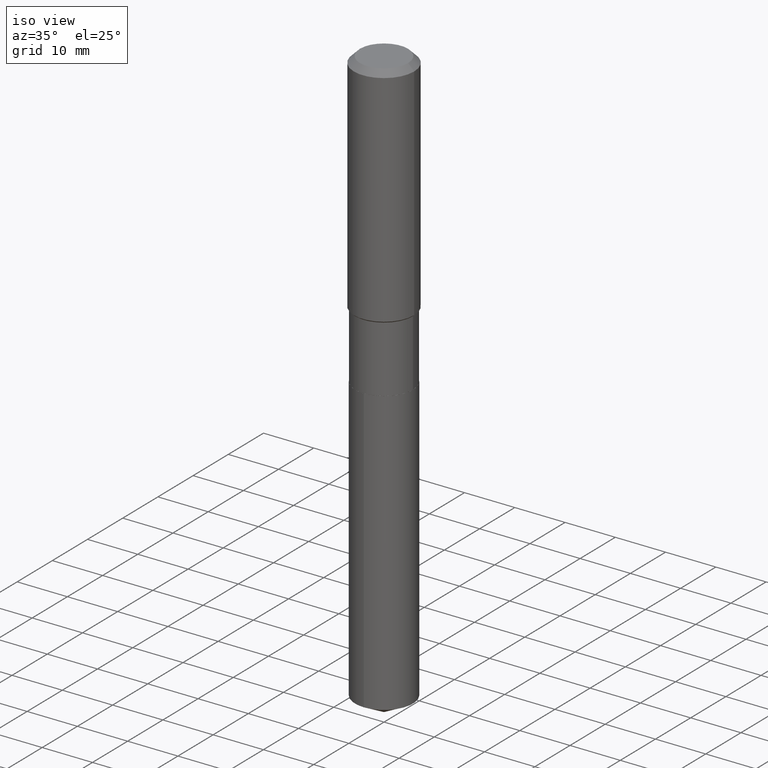
[diagram: clean part render]
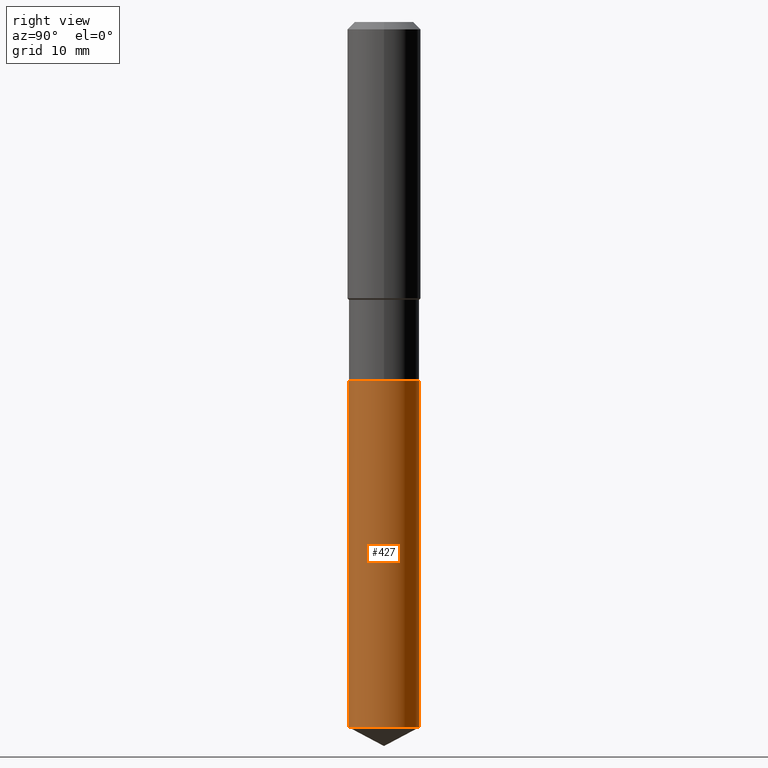
[diagram: tour spotlight — one face highlighted and labeled with its STEP entity id]
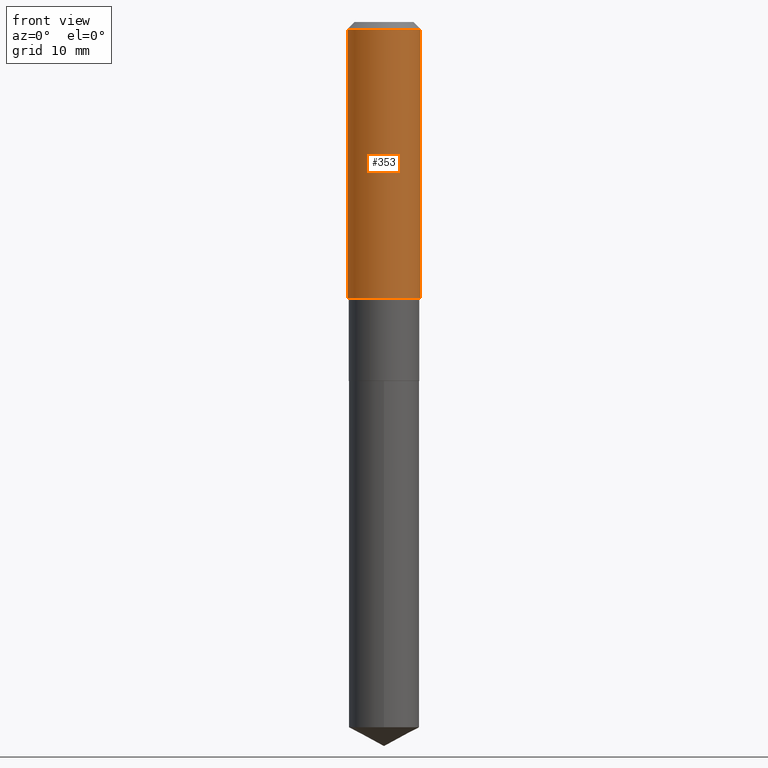
[diagram: tour spotlight — one face highlighted and labeled with its STEP entity id]
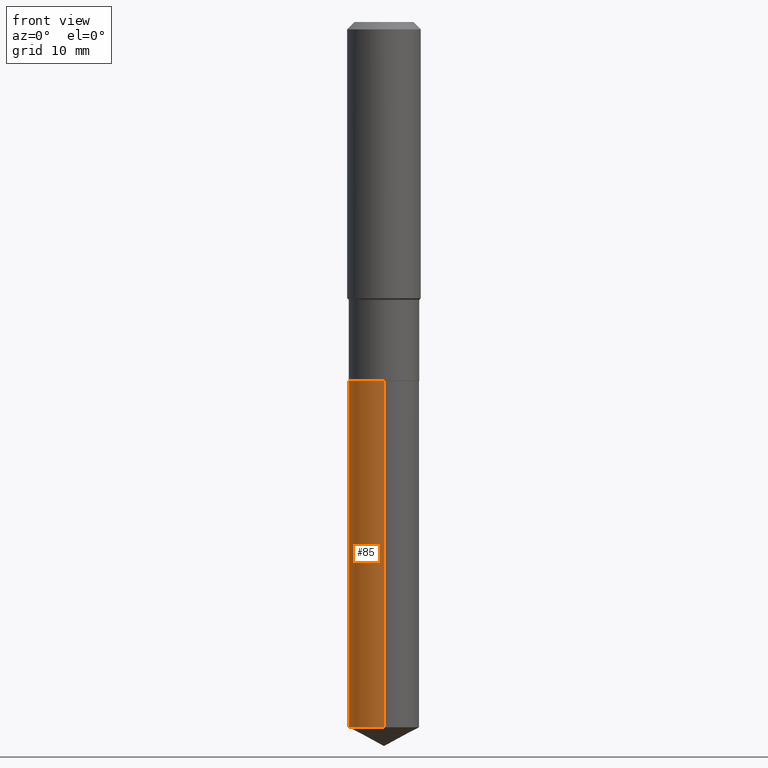
[diagram: tour spotlight — one face highlighted and labeled with its STEP entity id]
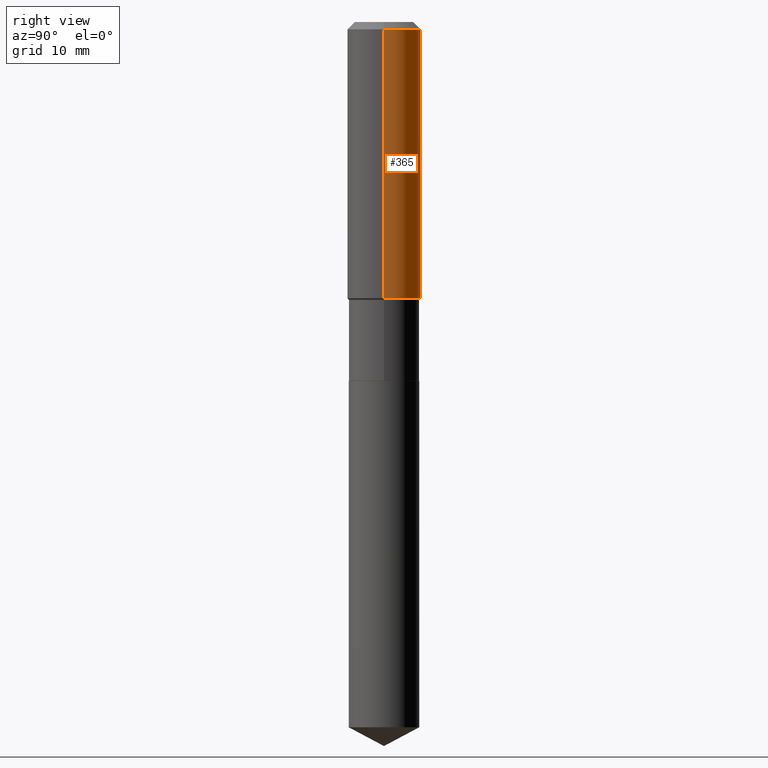
[diagram: tour spotlight — one face highlighted and labeled with its STEP entity id]
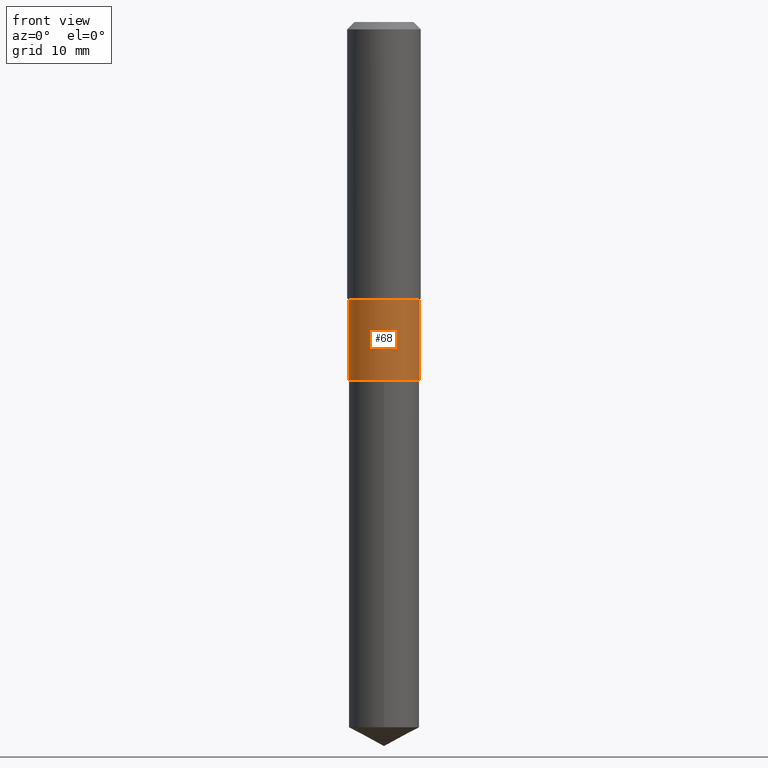
[diagram: tour spotlight — one face highlighted and labeled with its STEP entity id]
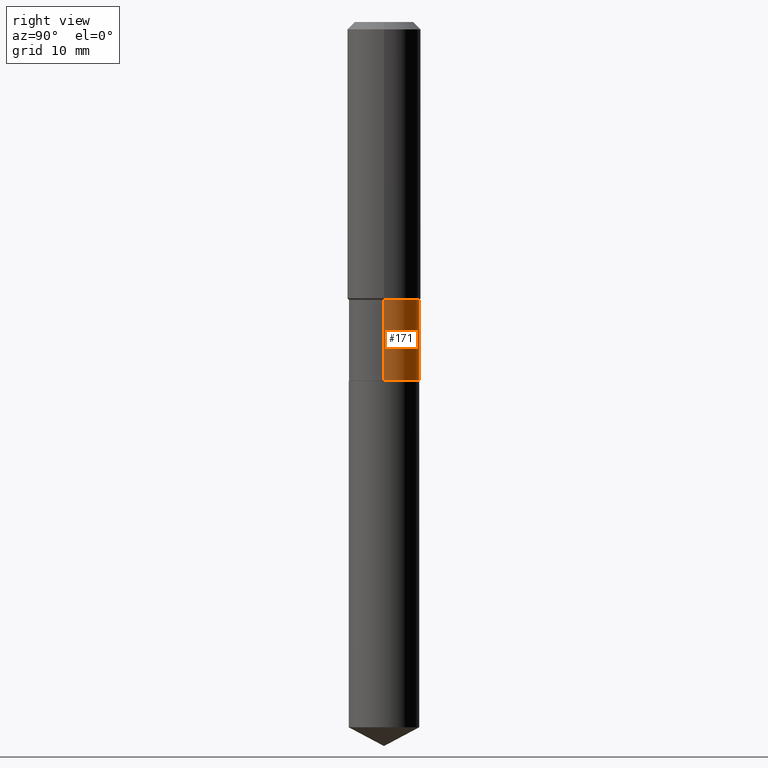
[diagram: tour spotlight — one face highlighted and labeled with its STEP entity id]
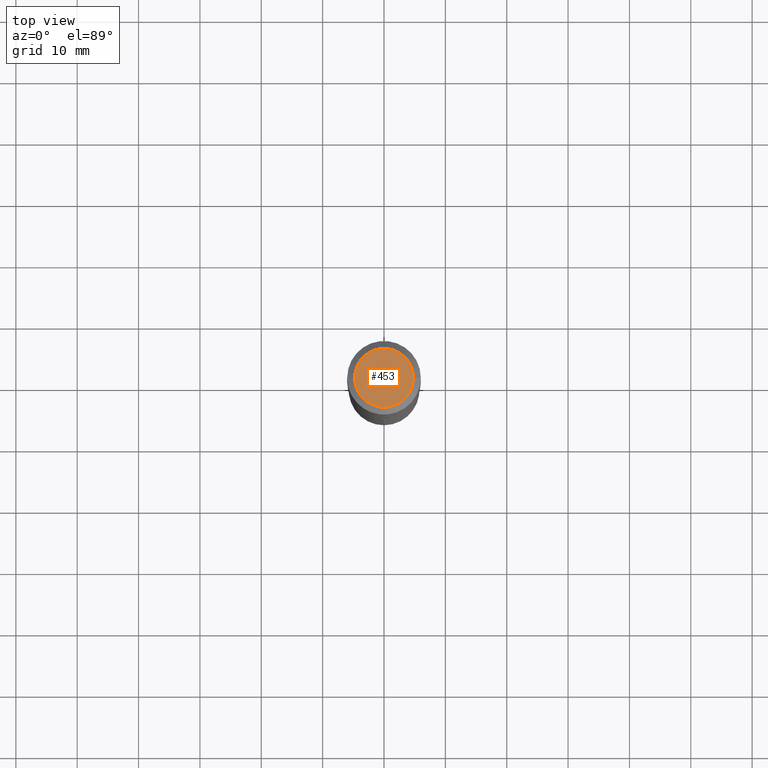
[diagram: tour spotlight — one face highlighted and labeled with its STEP entity id]
A machine part: a face-by-face anatomy tour. The part has 17 B-rep faces; the first image is the clean iso view, then the 7 largest visible faces are spotlighted one at a time (largest first), each with its STEP entity span.

Face 1 — right view, entity #427. In plain terms, the highlighted cylindrical surface (edge-blend (fillet) strip) has radius 5.7506 mm, axis along (-0, 0, 1).
Definition (entity closure, byte-faithful):
#25 = AXIS2_PLACEMENT_3D ( 'NONE', #405, #218, #117 ) ;
#32 = VERTEX_POINT ( 'NONE', #81 ) ;
#39 = DIRECTION ( 'NONE',  ( -2.445464056644001836E-29, 3.491488140456377926E-15, 1.000000000000000000 ) ) ;
#44 = DIRECTION ( 'NONE',  ( -2.445464056644001836E-29, 3.491488140456377531E-15, 1.000000000000000000 ) ) ;
#48 = EDGE_CURVE ( 'NONE', #451, #32, #239, .T. ) ;
#74 = CIRCLE ( 'NONE', #25, 0.2263999999999999624 ) ;
#81 = CARTESIAN_POINT ( 'NONE',  ( 1.608668753760976994E-15, 0.2263999999999841972, -4.525320984671841629 ) ) ;
#84 = VERTEX_POINT ( 'NONE', #320 ) ;
#94 = AXIS2_PLACEMENT_3D ( 'NONE', #127, #390, #258 ) ;
#117 = DIRECTION ( 'NONE',  ( -6.982962677686265922E-15, -1.000000000000000000, 3.619939920933211627E-15 ) ) ;
#127 = CARTESIAN_POINT ( 'NONE',  ( 1.106652075193497074E-28, -1.580008888426451514E-14, -4.525320984671841629 ) ) ;
#141 = LINE ( 'NONE', #296, #230 ) ;
#182 = CYLINDRICAL_SURFACE ( 'NONE', #240, 0.2263999999999999624 ) ;
#213 = EDGE_CURVE ( 'NONE', #451, #84, #141, .T. ) ;
#218 = DIRECTION ( 'NONE',  ( -2.445464056644001836E-29, 3.491488140456377926E-15, 1.000000000000000000 ) ) ;
#230 = VECTOR ( 'NONE', #438, 39.37007874015748143 ) ;
#235 = CARTESIAN_POINT ( 'NONE',  ( -1.580942750228060187E-15, -0.2264000000000157831, -4.525320984671840741 ) ) ;
#237 = CARTESIAN_POINT ( 'NONE',  ( 1.608668753760977191E-15, 0.2263999999999919133, -2.303200000000000358 ) ) ;
#239 = CIRCLE ( 'NONE', #94, 0.2263999999999999624 ) ;
#240 = AXIS2_PLACEMENT_3D ( 'NONE', #382, #39, #420 ) ;
#247 = ORIENTED_EDGE ( 'NONE', *, *, #213, .F. ) ;
#258 = DIRECTION ( 'NONE',  ( -6.982962677686265922E-15, -1.000000000000000000, 2.413293280622141084E-15 ) ) ;
#295 = EDGE_LOOP ( 'NONE', ( #357, #443, #355, #247 ) ) ;
#296 = CARTESIAN_POINT ( 'NONE',  ( -1.580942750228114224E-15, -0.2264000000000080115, -2.303199999999998582 ) ) ;
#310 = FACE_OUTER_BOUND ( 'NONE', #295, .T. ) ;
#320 = CARTESIAN_POINT ( 'NONE',  ( -1.580942750228114224E-15, -0.2264000000000080115, -2.303199999999998582 ) ) ;
#326 = VECTOR ( 'NONE', #44, 39.37007874015748143 ) ;
#336 = EDGE_CURVE ( 'NONE', #84, #366, #74, .T. ) ;
#340 = CARTESIAN_POINT ( 'NONE',  ( 1.608668753760922760E-15, 0.2263999999999919410, -2.303200000000000358 ) ) ;
#355 = ORIENTED_EDGE ( 'NONE', *, *, #336, .F. ) ;
#357 = ORIENTED_EDGE ( 'NONE', *, *, #48, .T. ) ;
#366 = VERTEX_POINT ( 'NONE', #237 ) ;
#382 = CARTESIAN_POINT ( 'NONE',  ( 5.632403754405604963E-29, -8.041579819623531161E-15, -2.303199999999999470 ) ) ;
#390 = DIRECTION ( 'NONE',  ( -2.445464056644001836E-29, 3.491488140456377926E-15, 1.000000000000000000 ) ) ;
#405 = CARTESIAN_POINT ( 'NONE',  ( 5.632403754405604963E-29, -8.041579819623531161E-15, -2.303199999999999470 ) ) ;
#416 = EDGE_CURVE ( 'NONE', #32, #366, #450, .T. ) ;
#420 = DIRECTION ( 'NONE',  ( -6.982962677686265922E-15, -1.000000000000000000, 3.619939920933211627E-15 ) ) ;
#427 = ADVANCED_FACE ( 'NONE', ( #310 ), #182, .T. ) ;
#438 = DIRECTION ( 'NONE',  ( -2.445464056644001836E-29, 3.491488140456377531E-15, 1.000000000000000000 ) ) ;
#443 = ORIENTED_EDGE ( 'NONE', *, *, #416, .T. ) ;
#450 = LINE ( 'NONE', #340, #326 ) ;
#451 = VERTEX_POINT ( 'NONE', #235 ) ;

Face 2 — front view, entity #353. In plain terms, the highlighted cylindrical surface (partial cylindrical patch) has radius 5.9995 mm, axis along (-0, 0, 1).
Definition (entity closure, byte-faithful):
#2 = CARTESIAN_POINT ( 'NONE',  ( -0.2362000000000002153, -4.511047027501882961E-15, -1.772699999999999054 ) ) ;
#12 = CIRCLE ( 'NONE', #319, 0.2362000000000002153 ) ;
#29 = CARTESIAN_POINT ( 'NONE',  ( 0.2361999999999999933, -1.814313362916447440E-15, -0.04724000000000028177 ) ) ;
#31 = EDGE_CURVE ( 'NONE', #469, #211, #277, .T. ) ;
#51 = CARTESIAN_POINT ( 'NONE',  ( -0.2362000000000001043, 1.678301941865357380E-15, -1.161852468318209317E-29 ) ) ;
#57 = CARTESIAN_POINT ( 'NONE',  ( -0.2361999999999999933, -1.498841332041738346E-15, -0.04724000000000028177 ) ) ;
#63 = DIRECTION ( 'NONE',  ( -2.445468806185136597E-29, 3.491481338843145583E-15, 1.000000000000000000 ) ) ;
#70 = EDGE_LOOP ( 'NONE', ( #169, #260, #309, #373 ) ) ;
#73 = DIRECTION ( 'NONE',  ( -2.445468806185136597E-29, 3.491481338843145583E-15, 1.000000000000000000 ) ) ;
#86 = CARTESIAN_POINT ( 'NONE',  ( 0.2362000000000001043, -1.649375784469496920E-15, 1.151752954443000508E-29 ) ) ;
#98 = CARTESIAN_POINT ( 'NONE',  ( 1.155239464041865506E-30, -1.649375784469511859E-16, -0.04724000000000028177 ) ) ;
#106 = CARTESIAN_POINT ( 'NONE',  ( 4.335082552724389227E-29, -6.189348969367240933E-15, -1.772699999999999054 ) ) ;
#108 = AXIS2_PLACEMENT_3D ( 'NONE', #411, #73, #274 ) ;
#135 = EDGE_CURVE ( 'NONE', #369, #331, #254, .T. ) ;
#156 = FACE_OUTER_BOUND ( 'NONE', #70, .T. ) ;
#169 = ORIENTED_EDGE ( 'NONE', *, *, #135, .F. ) ;
#176 = CIRCLE ( 'NONE', #286, 0.2361999999999999933 ) ;
#211 = VERTEX_POINT ( 'NONE', #29 ) ;
#216 = DIRECTION ( 'NONE',  ( -2.445468806185136597E-29, 3.491481338843145583E-15, 1.000000000000000000 ) ) ;
#243 = VECTOR ( 'NONE', #287, 39.37007874015748143 ) ;
#254 = LINE ( 'NONE', #51, #243 ) ;
#260 = ORIENTED_EDGE ( 'NONE', *, *, #316, .T. ) ;
#274 = DIRECTION ( 'NONE',  ( 1.000000000000000000, -6.982962677686266711E-15, 4.876176775795935793E-29 ) ) ;
#277 = LINE ( 'NONE', #86, #444 ) ;
#286 = AXIS2_PLACEMENT_3D ( 'NONE', #98, #216, #363 ) ;
#287 = DIRECTION ( 'NONE',  ( -2.445468806185136877E-29, 3.491481338843145188E-15, 1.000000000000000000 ) ) ;
#301 = CARTESIAN_POINT ( 'NONE',  ( 0.2362000000000002153, -7.838724753836739036E-15, -1.772699999999999054 ) ) ;
#309 = ORIENTED_EDGE ( 'NONE', *, *, #31, .T. ) ;
#311 = EDGE_CURVE ( 'NONE', #331, #211, #176, .T. ) ;
#316 = EDGE_CURVE ( 'NONE', #369, #469, #12, .T. ) ;
#317 = DIRECTION ( 'NONE',  ( -2.445468806185136877E-29, 3.491481338843145188E-15, 1.000000000000000000 ) ) ;
#319 = AXIS2_PLACEMENT_3D ( 'NONE', #106, #63, #367 ) ;
#331 = VERTEX_POINT ( 'NONE', #57 ) ;
#353 = ADVANCED_FACE ( 'NONE', ( #156 ), #376, .T. ) ;
#363 = DIRECTION ( 'NONE',  ( 1.000000000000000000, -6.982962677686266711E-15, 0.000000000000000000 ) ) ;
#367 = DIRECTION ( 'NONE',  ( 1.000000000000000000, -6.982962677686266711E-15, 0.000000000000000000 ) ) ;
#369 = VERTEX_POINT ( 'NONE', #2 ) ;
#373 = ORIENTED_EDGE ( 'NONE', *, *, #311, .F. ) ;
#376 = CYLINDRICAL_SURFACE ( 'NONE', #108, 0.2362000000000001043 ) ;
#411 = CARTESIAN_POINT ( 'NONE',  ( 0.000000000000000000, 0.000000000000000000, 0.000000000000000000 ) ) ;
#444 = VECTOR ( 'NONE', #317, 39.37007874015748143 ) ;
#469 = VERTEX_POINT ( 'NONE', #301 ) ;

Face 3 — front view, entity #85. In plain terms, the highlighted cylindrical surface (edge-blend (fillet) strip) has radius 5.7506 mm, axis along (-0, 0, 1).
Definition (entity closure, byte-faithful):
#14 = EDGE_CURVE ( 'NONE', #32, #451, #138, .T. ) ;
#32 = VERTEX_POINT ( 'NONE', #81 ) ;
#44 = DIRECTION ( 'NONE',  ( -2.445464056644001836E-29, 3.491488140456377531E-15, 1.000000000000000000 ) ) ;
#60 = DIRECTION ( 'NONE',  ( -6.982962677686265922E-15, -1.000000000000000000, 3.619939920933211627E-15 ) ) ;
#81 = CARTESIAN_POINT ( 'NONE',  ( 1.608668753760976994E-15, 0.2263999999999841972, -4.525320984671841629 ) ) ;
#84 = VERTEX_POINT ( 'NONE', #320 ) ;
#85 = ADVANCED_FACE ( 'NONE', ( #368 ), #372, .T. ) ;
#109 = EDGE_LOOP ( 'NONE', ( #408, #181, #264, #111 ) ) ;
#111 = ORIENTED_EDGE ( 'NONE', *, *, #204, .F. ) ;
#138 = CIRCLE ( 'NONE', #165, 0.2263999999999999624 ) ;
#141 = LINE ( 'NONE', #296, #230 ) ;
#146 = DIRECTION ( 'NONE',  ( -2.445464056644001836E-29, 3.491488140456377926E-15, 1.000000000000000000 ) ) ;
#165 = AXIS2_PLACEMENT_3D ( 'NONE', #425, #203, #460 ) ;
#167 = CARTESIAN_POINT ( 'NONE',  ( 5.632403754405604963E-29, -8.041579819623531161E-15, -2.303199999999999470 ) ) ;
#181 = ORIENTED_EDGE ( 'NONE', *, *, #14, .T. ) ;
#195 = CIRCLE ( 'NONE', #219, 0.2263999999999999624 ) ;
#203 = DIRECTION ( 'NONE',  ( -2.445464056644001836E-29, 3.491488140456377926E-15, 1.000000000000000000 ) ) ;
#204 = EDGE_CURVE ( 'NONE', #366, #84, #195, .T. ) ;
#213 = EDGE_CURVE ( 'NONE', #451, #84, #141, .T. ) ;
#219 = AXIS2_PLACEMENT_3D ( 'NONE', #167, #472, #60 ) ;
#220 = CARTESIAN_POINT ( 'NONE',  ( 5.632403754405604963E-29, -8.041579819623531161E-15, -2.303199999999999470 ) ) ;
#230 = VECTOR ( 'NONE', #438, 39.37007874015748143 ) ;
#235 = CARTESIAN_POINT ( 'NONE',  ( -1.580942750228060187E-15, -0.2264000000000157831, -4.525320984671840741 ) ) ;
#237 = CARTESIAN_POINT ( 'NONE',  ( 1.608668753760977191E-15, 0.2263999999999919133, -2.303200000000000358 ) ) ;
#264 = ORIENTED_EDGE ( 'NONE', *, *, #213, .T. ) ;
#296 = CARTESIAN_POINT ( 'NONE',  ( -1.580942750228114224E-15, -0.2264000000000080115, -2.303199999999998582 ) ) ;
#320 = CARTESIAN_POINT ( 'NONE',  ( -1.580942750228114224E-15, -0.2264000000000080115, -2.303199999999998582 ) ) ;
#326 = VECTOR ( 'NONE', #44, 39.37007874015748143 ) ;
#340 = CARTESIAN_POINT ( 'NONE',  ( 1.608668753760922760E-15, 0.2263999999999919410, -2.303200000000000358 ) ) ;
#366 = VERTEX_POINT ( 'NONE', #237 ) ;
#368 = FACE_OUTER_BOUND ( 'NONE', #109, .T. ) ;
#372 = CYLINDRICAL_SURFACE ( 'NONE', #474, 0.2263999999999999624 ) ;
#408 = ORIENTED_EDGE ( 'NONE', *, *, #416, .F. ) ;
#416 = EDGE_CURVE ( 'NONE', #32, #366, #450, .T. ) ;
#425 = CARTESIAN_POINT ( 'NONE',  ( 1.106652075193497074E-28, -1.580008888426451514E-14, -4.525320984671841629 ) ) ;
#438 = DIRECTION ( 'NONE',  ( -2.445464056644001836E-29, 3.491488140456377531E-15, 1.000000000000000000 ) ) ;
#450 = LINE ( 'NONE', #340, #326 ) ;
#451 = VERTEX_POINT ( 'NONE', #235 ) ;
#460 = DIRECTION ( 'NONE',  ( -6.982962677686265922E-15, -1.000000000000000000, 2.413293280622141084E-15 ) ) ;
#468 = DIRECTION ( 'NONE',  ( -6.982962677686265922E-15, -1.000000000000000000, 3.619939920933211627E-15 ) ) ;
#472 = DIRECTION ( 'NONE',  ( -2.445464056644001836E-29, 3.491488140456377926E-15, 1.000000000000000000 ) ) ;
#474 = AXIS2_PLACEMENT_3D ( 'NONE', #220, #146, #468 ) ;

Face 4 — right view, entity #365. In plain terms, the highlighted cylindrical surface (partial cylindrical patch) has radius 5.9995 mm, axis along (-0, 0, 1).
Definition (entity closure, byte-faithful):
#2 = CARTESIAN_POINT ( 'NONE',  ( -0.2362000000000002153, -4.511047027501882961E-15, -1.772699999999999054 ) ) ;
#3 = CARTESIAN_POINT ( 'NONE',  ( 1.155239464041865506E-30, -1.649375784469511859E-16, -0.04724000000000028177 ) ) ;
#6 = DIRECTION ( 'NONE',  ( 1.000000000000000000, -6.982962677686266711E-15, 4.876176775795935793E-29 ) ) ;
#29 = CARTESIAN_POINT ( 'NONE',  ( 0.2361999999999999933, -1.814313362916447440E-15, -0.04724000000000028177 ) ) ;
#31 = EDGE_CURVE ( 'NONE', #469, #211, #277, .T. ) ;
#51 = CARTESIAN_POINT ( 'NONE',  ( -0.2362000000000001043, 1.678301941865357380E-15, -1.161852468318209317E-29 ) ) ;
#57 = CARTESIAN_POINT ( 'NONE',  ( -0.2361999999999999933, -1.498841332041738346E-15, -0.04724000000000028177 ) ) ;
#59 = ORIENTED_EDGE ( 'NONE', *, *, #135, .T. ) ;
#80 = AXIS2_PLACEMENT_3D ( 'NONE', #270, #153, #6 ) ;
#86 = CARTESIAN_POINT ( 'NONE',  ( 0.2362000000000001043, -1.649375784469496920E-15, 1.151752954443000508E-29 ) ) ;
#113 = DIRECTION ( 'NONE',  ( 1.000000000000000000, -6.982962677686266711E-15, 0.000000000000000000 ) ) ;
#135 = EDGE_CURVE ( 'NONE', #369, #331, #254, .T. ) ;
#153 = DIRECTION ( 'NONE',  ( -2.445468806185136597E-29, 3.491481338843145583E-15, 1.000000000000000000 ) ) ;
#164 = ORIENTED_EDGE ( 'NONE', *, *, #484, .F. ) ;
#166 = ORIENTED_EDGE ( 'NONE', *, *, #31, .F. ) ;
#170 = CARTESIAN_POINT ( 'NONE',  ( 4.335082552724389227E-29, -6.189348969367240933E-15, -1.772699999999999054 ) ) ;
#175 = AXIS2_PLACEMENT_3D ( 'NONE', #170, #473, #439 ) ;
#192 = EDGE_CURVE ( 'NONE', #469, #369, #393, .T. ) ;
#211 = VERTEX_POINT ( 'NONE', #29 ) ;
#243 = VECTOR ( 'NONE', #287, 39.37007874015748143 ) ;
#245 = AXIS2_PLACEMENT_3D ( 'NONE', #3, #490, #113 ) ;
#254 = LINE ( 'NONE', #51, #243 ) ;
#270 = CARTESIAN_POINT ( 'NONE',  ( 0.000000000000000000, 0.000000000000000000, 0.000000000000000000 ) ) ;
#277 = LINE ( 'NONE', #86, #444 ) ;
#280 = EDGE_LOOP ( 'NONE', ( #375, #59, #164, #166 ) ) ;
#287 = DIRECTION ( 'NONE',  ( -2.445468806185136877E-29, 3.491481338843145188E-15, 1.000000000000000000 ) ) ;
#301 = CARTESIAN_POINT ( 'NONE',  ( 0.2362000000000002153, -7.838724753836739036E-15, -1.772699999999999054 ) ) ;
#317 = DIRECTION ( 'NONE',  ( -2.445468806185136877E-29, 3.491481338843145188E-15, 1.000000000000000000 ) ) ;
#331 = VERTEX_POINT ( 'NONE', #57 ) ;
#365 = ADVANCED_FACE ( 'NONE', ( #455 ), #385, .T. ) ;
#369 = VERTEX_POINT ( 'NONE', #2 ) ;
#375 = ORIENTED_EDGE ( 'NONE', *, *, #192, .T. ) ;
#385 = CYLINDRICAL_SURFACE ( 'NONE', #80, 0.2362000000000001043 ) ;
#393 = CIRCLE ( 'NONE', #175, 0.2362000000000002153 ) ;
#439 = DIRECTION ( 'NONE',  ( 1.000000000000000000, -6.982962677686266711E-15, 0.000000000000000000 ) ) ;
#444 = VECTOR ( 'NONE', #317, 39.37007874015748143 ) ;
#454 = CIRCLE ( 'NONE', #245, 0.2361999999999999933 ) ;
#455 = FACE_OUTER_BOUND ( 'NONE', #280, .T. ) ;
#469 = VERTEX_POINT ( 'NONE', #301 ) ;
#473 = DIRECTION ( 'NONE',  ( -2.445468806185136597E-29, 3.491481338843145583E-15, 1.000000000000000000 ) ) ;
#484 = EDGE_CURVE ( 'NONE', #211, #331, #454, .T. ) ;
#490 = DIRECTION ( 'NONE',  ( -2.445468806185136597E-29, 3.491481338843145583E-15, 1.000000000000000000 ) ) ;

Face 5 — front view, entity #68. In plain terms, the highlighted cylindrical surface (edge-blend (fillet) strip) has radius 5.7506 mm, axis along (-0, 0, 1).
Definition (entity closure, byte-faithful):
#16 = CARTESIAN_POINT ( 'NONE',  ( 0.2263999999999999624, -9.620776829182280876E-15, -2.302699999999999303 ) ) ;
#20 = CARTESIAN_POINT ( 'NONE',  ( 0.000000000000000000, 0.000000000000000000, 0.000000000000000000 ) ) ;
#34 = ORIENTED_EDGE ( 'NONE', *, *, #131, .T. ) ;
#35 = AXIS2_PLACEMENT_3D ( 'NONE', #107, #250, #137 ) ;
#68 = ADVANCED_FACE ( 'NONE', ( #90 ), #481, .T. ) ;
#79 = AXIS2_PLACEMENT_3D ( 'NONE', #294, #436, #284 ) ;
#90 = FACE_OUTER_BOUND ( 'NONE', #321, .T. ) ;
#99 = EDGE_CURVE ( 'NONE', #485, #162, #124, .T. ) ;
#103 = EDGE_CURVE ( 'NONE', #143, #162, #442, .T. ) ;
#107 = CARTESIAN_POINT ( 'NONE',  ( 5.631181020002513283E-29, -8.039834078954108869E-15, -2.302699999999999303 ) ) ;
#119 = EDGE_CURVE ( 'NONE', #288, #485, #132, .T. ) ;
#124 = CIRCLE ( 'NONE', #79, 0.2263999999999999069 ) ;
#131 = EDGE_CURVE ( 'NONE', #288, #143, #268, .T. ) ;
#132 = LINE ( 'NONE', #478, #252 ) ;
#137 = DIRECTION ( 'NONE',  ( 1.000000000000000000, -6.982962677686269077E-15, 0.000000000000000000 ) ) ;
#143 = VERTEX_POINT ( 'NONE', #16 ) ;
#162 = VERTEX_POINT ( 'NONE', #398 ) ;
#168 = DIRECTION ( 'NONE',  ( -2.445468806185136597E-29, 3.491481338843145583E-15, 1.000000000000000000 ) ) ;
#174 = DIRECTION ( 'NONE',  ( -2.445468806185136877E-29, 3.491481338843145188E-15, 1.000000000000000000 ) ) ;
#201 = VECTOR ( 'NONE', #431, 39.37007874015748143 ) ;
#250 = DIRECTION ( 'NONE',  ( -2.445468806185136597E-29, 3.491481338843145583E-15, 1.000000000000000000 ) ) ;
#252 = VECTOR ( 'NONE', #174, 39.37007874015748143 ) ;
#268 = CIRCLE ( 'NONE', #35, 0.2263999999999999624 ) ;
#279 = ORIENTED_EDGE ( 'NONE', *, *, #99, .F. ) ;
#284 = DIRECTION ( 'NONE',  ( 1.000000000000000000, -6.982962677686265922E-15, 0.000000000000000000 ) ) ;
#288 = VERTEX_POINT ( 'NONE', #293 ) ;
#290 = CARTESIAN_POINT ( 'NONE',  ( 0.2263999999999999346, -1.580942750228170233E-15, 1.103966422040199590E-29 ) ) ;
#293 = CARTESIAN_POINT ( 'NONE',  ( -0.2263999999999999624, -5.523031028960140857E-15, -2.302699999999999303 ) ) ;
#294 = CARTESIAN_POINT ( 'NONE',  ( 4.359048147025004325E-29, -6.223565486487904770E-15, -1.782499999999999307 ) ) ;
#297 = AXIS2_PLACEMENT_3D ( 'NONE', #20, #168, #323 ) ;
#321 = EDGE_LOOP ( 'NONE', ( #482, #34, #489, #279 ) ) ;
#323 = DIRECTION ( 'NONE',  ( 1.000000000000000000, -6.982962677686265922E-15, 4.876176775795935793E-29 ) ) ;
#398 = CARTESIAN_POINT ( 'NONE',  ( 0.2263999999999999069, -7.804508236716074411E-15, -1.782499999999999307 ) ) ;
#410 = CARTESIAN_POINT ( 'NONE',  ( -0.2263999999999999069, -5.523031028960140857E-15, -1.782499999999999307 ) ) ;
#431 = DIRECTION ( 'NONE',  ( -2.445468806185136877E-29, 3.491481338843145188E-15, 1.000000000000000000 ) ) ;
#436 = DIRECTION ( 'NONE',  ( -2.445468806185136597E-29, 3.491481338843145583E-15, 1.000000000000000000 ) ) ;
#442 = LINE ( 'NONE', #290, #201 ) ;
#478 = CARTESIAN_POINT ( 'NONE',  ( -0.2263999999999999346, 1.608668753760866356E-15, -1.113646904433710280E-29 ) ) ;
#481 = CYLINDRICAL_SURFACE ( 'NONE', #297, 0.2263999999999999346 ) ;
#482 = ORIENTED_EDGE ( 'NONE', *, *, #119, .F. ) ;
#485 = VERTEX_POINT ( 'NONE', #410 ) ;
#489 = ORIENTED_EDGE ( 'NONE', *, *, #103, .T. ) ;

Face 6 — right view, entity #171. In plain terms, the highlighted cylindrical surface (edge-blend (fillet) strip) has radius 5.7506 mm, axis along (-0, 0, 1).
Definition (entity closure, byte-faithful):
#16 = CARTESIAN_POINT ( 'NONE',  ( 0.2263999999999999624, -9.620776829182280876E-15, -2.302699999999999303 ) ) ;
#19 = EDGE_CURVE ( 'NONE', #143, #288, #149, .T. ) ;
#21 = ORIENTED_EDGE ( 'NONE', *, *, #19, .T. ) ;
#50 = DIRECTION ( 'NONE',  ( 1.000000000000000000, -6.982962677686269077E-15, 0.000000000000000000 ) ) ;
#52 = FACE_OUTER_BOUND ( 'NONE', #426, .T. ) ;
#58 = CARTESIAN_POINT ( 'NONE',  ( 0.000000000000000000, 0.000000000000000000, 0.000000000000000000 ) ) ;
#93 = CARTESIAN_POINT ( 'NONE',  ( 4.359048147025004325E-29, -6.223565486487904770E-15, -1.782499999999999307 ) ) ;
#96 = ORIENTED_EDGE ( 'NONE', *, *, #103, .F. ) ;
#100 = DIRECTION ( 'NONE',  ( 1.000000000000000000, -6.982962677686265922E-15, 0.000000000000000000 ) ) ;
#103 = EDGE_CURVE ( 'NONE', #143, #162, #442, .T. ) ;
#110 = EDGE_CURVE ( 'NONE', #162, #485, #486, .T. ) ;
#119 = EDGE_CURVE ( 'NONE', #288, #485, #132, .T. ) ;
#132 = LINE ( 'NONE', #478, #252 ) ;
#143 = VERTEX_POINT ( 'NONE', #16 ) ;
#149 = CIRCLE ( 'NONE', #379, 0.2263999999999999624 ) ;
#162 = VERTEX_POINT ( 'NONE', #398 ) ;
#171 = ADVANCED_FACE ( 'NONE', ( #52 ), #402, .T. ) ;
#172 = ORIENTED_EDGE ( 'NONE', *, *, #110, .F. ) ;
#174 = DIRECTION ( 'NONE',  ( -2.445468806185136877E-29, 3.491481338843145188E-15, 1.000000000000000000 ) ) ;
#177 = ORIENTED_EDGE ( 'NONE', *, *, #119, .T. ) ;
#201 = VECTOR ( 'NONE', #431, 39.37007874015748143 ) ;
#214 = DIRECTION ( 'NONE',  ( 1.000000000000000000, -6.982962677686265922E-15, 4.876176775795935793E-29 ) ) ;
#252 = VECTOR ( 'NONE', #174, 39.37007874015748143 ) ;
#253 = DIRECTION ( 'NONE',  ( -2.445468806185136597E-29, 3.491481338843145583E-15, 1.000000000000000000 ) ) ;
#288 = VERTEX_POINT ( 'NONE', #293 ) ;
#290 = CARTESIAN_POINT ( 'NONE',  ( 0.2263999999999999346, -1.580942750228170233E-15, 1.103966422040199590E-29 ) ) ;
#293 = CARTESIAN_POINT ( 'NONE',  ( -0.2263999999999999624, -5.523031028960140857E-15, -2.302699999999999303 ) ) ;
#313 = CARTESIAN_POINT ( 'NONE',  ( 5.631181020002513283E-29, -8.039834078954108869E-15, -2.302699999999999303 ) ) ;
#327 = DIRECTION ( 'NONE',  ( -2.445468806185136597E-29, 3.491481338843145583E-15, 1.000000000000000000 ) ) ;
#379 = AXIS2_PLACEMENT_3D ( 'NONE', #313, #463, #50 ) ;
#398 = CARTESIAN_POINT ( 'NONE',  ( 0.2263999999999999069, -7.804508236716074411E-15, -1.782499999999999307 ) ) ;
#402 = CYLINDRICAL_SURFACE ( 'NONE', #428, 0.2263999999999999346 ) ;
#410 = CARTESIAN_POINT ( 'NONE',  ( -0.2263999999999999069, -5.523031028960140857E-15, -1.782499999999999307 ) ) ;
#426 = EDGE_LOOP ( 'NONE', ( #21, #177, #172, #96 ) ) ;
#428 = AXIS2_PLACEMENT_3D ( 'NONE', #58, #327, #214 ) ;
#431 = DIRECTION ( 'NONE',  ( -2.445468806185136877E-29, 3.491481338843145188E-15, 1.000000000000000000 ) ) ;
#442 = LINE ( 'NONE', #290, #201 ) ;
#461 = AXIS2_PLACEMENT_3D ( 'NONE', #93, #253, #100 ) ;
#463 = DIRECTION ( 'NONE',  ( -2.445468806185136597E-29, 3.491481338843145583E-15, 1.000000000000000000 ) ) ;
#478 = CARTESIAN_POINT ( 'NONE',  ( -0.2263999999999999346, 1.608668753760866356E-15, -1.113646904433710280E-29 ) ) ;
#485 = VERTEX_POINT ( 'NONE', #410 ) ;
#486 = CIRCLE ( 'NONE', #461, 0.2263999999999999069 ) ;

Face 7 — top view, entity #453. In plain terms, the highlighted planar face has unit normal (0, -0, -1).
Definition (entity closure, byte-faithful):
#15 = VERTEX_POINT ( 'NONE', #278 ) ;
#18 = AXIS2_PLACEMENT_3D ( 'NONE', #458, #154, #343 ) ;
#102 = DIRECTION ( 'NONE',  ( 1.000000000000000000, -6.982962677686266711E-15, 4.876185090822587894E-29 ) ) ;
#122 = FACE_OUTER_BOUND ( 'NONE', #128, .T. ) ;
#128 = EDGE_LOOP ( 'NONE', ( #457, #179 ) ) ;
#152 = DIRECTION ( 'NONE',  ( 2.438088387897960049E-29, -3.491481338843145188E-15, -1.000000000000000000 ) ) ;
#154 = DIRECTION ( 'NONE',  ( -2.445468806185136597E-29, 3.491481338843145583E-15, 1.000000000000000000 ) ) ;
#160 = AXIS2_PLACEMENT_3D ( 'NONE', #487, #152, #383 ) ;
#179 = ORIENTED_EDGE ( 'NONE', *, *, #449, .T. ) ;
#251 = EDGE_CURVE ( 'NONE', #333, #15, #298, .T. ) ;
#256 = CARTESIAN_POINT ( 'NONE',  ( -9.427742298522546243E-47, 1.346031739168365344E-32, 3.855188123715862256E-18 ) ) ;
#261 = DIRECTION ( 'NONE',  ( -2.445468806185136597E-29, 3.491481338843145583E-15, 1.000000000000000000 ) ) ;
#278 = CARTESIAN_POINT ( 'NONE',  ( 0.1889600000000000168, -1.540873453589747738E-15, 3.855188123725863225E-18 ) ) ;
#298 = CIRCLE ( 'NONE', #346, 0.1889600000000000168 ) ;
#325 = CARTESIAN_POINT ( 'NONE',  ( -0.1889600000000000168, 1.401969416799070942E-15, 3.855188123706346622E-18 ) ) ;
#333 = VERTEX_POINT ( 'NONE', #325 ) ;
#334 = PLANE ( 'NONE',  #160 ) ;
#343 = DIRECTION ( 'NONE',  ( 1.000000000000000000, -6.982962677686266711E-15, 4.876185090822587894E-29 ) ) ;
#346 = AXIS2_PLACEMENT_3D ( 'NONE', #256, #261, #102 ) ;
#383 = DIRECTION ( 'NONE',  ( -1.000000000000000000, 6.982962677686265922E-15, -4.876176775795935793E-29 ) ) ;
#401 = CIRCLE ( 'NONE', #18, 0.1889600000000000168 ) ;
#449 = EDGE_CURVE ( 'NONE', #15, #333, #401, .T. ) ;
#453 = ADVANCED_FACE ( 'NONE', ( #122 ), #334, .F. ) ;
#457 = ORIENTED_EDGE ( 'NONE', *, *, #251, .T. ) ;
#458 = CARTESIAN_POINT ( 'NONE',  ( -9.427742298522546243E-47, 1.346031739168365344E-32, 3.855188123715862256E-18 ) ) ;
#487 = CARTESIAN_POINT ( 'NONE',  ( -4.713871149261273121E-47, 6.730158695841826722E-33, 1.927594061857931128E-18 ) ) ;